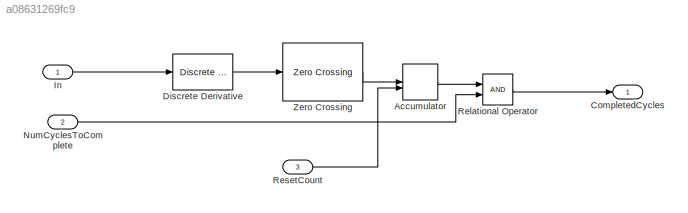
MODEL slx_a08631269fc9
KIND model
CONFIG AbsTol = auto
CONFIG EnableMultiTasking = off
CONFIG FixedStep = auto
CONFIG MaxStep = auto
CONFIG MinStep = auto
CONFIG RelTol = 1e-3
CONFIG SampleTimeConstraint = Unconstrained
CONFIG SolverName = FixedStepAuto
CONFIG StartTime = 0.0
CONFIG StopTime = 10.0
BLOCK [DiscreteIntegrator] Accumulator
  ExternalReset = level
  ICPrevOutput = DiscIntNeverNeededParam
  ICPrevScaledInput = DiscIntNeverNeededParam
  InitialConditionSetting = Auto
  IntegratorMethod = Accumulation: Forward Euler
  SampleTime = -1
BLOCK [Outport] CompletedCycles
BLOCK [Reference] Discrete Derivative  REF=simulink/Discrete/Discrete Derivative
  SourceBlock = simulink/Discrete/Discrete Derivative
  SourceType = Discrete Derivative
BLOCK [Inport] In
  Interpolate = off
  OutDataTypeStr = double
BLOCK [Inport] NumCyclesToComplete
  Interpolate = off
  OutDataTypeStr = double
  Port = 2
BLOCK [RelationalOperator] Relational Operator
  InputSameDT = off
  RndMeth = Simplest
BLOCK [Inport] ResetCount
  Port = 3
BLOCK [Reference] Zero Crossing  REF=dspsigops/Zero Crossing
  SourceBlock = dspsigops/Zero Crossing
  SourceType = Zero Crossing
  UserDataPersistent = on
LINE Accumulator:1 -> Relational Operator:1
LINE Discrete Derivative:1 -> Zero Crossing:1
LINE In:1 -> Discrete Derivative:1
LINE NumCyclesToComplete:1 -> Relational Operator:2
LINE Relational Operator:1 -> CompletedCycles:1
LINE ResetCount:1 -> Accumulator:2
LINE Zero Crossing:1 -> Accumulator:1
